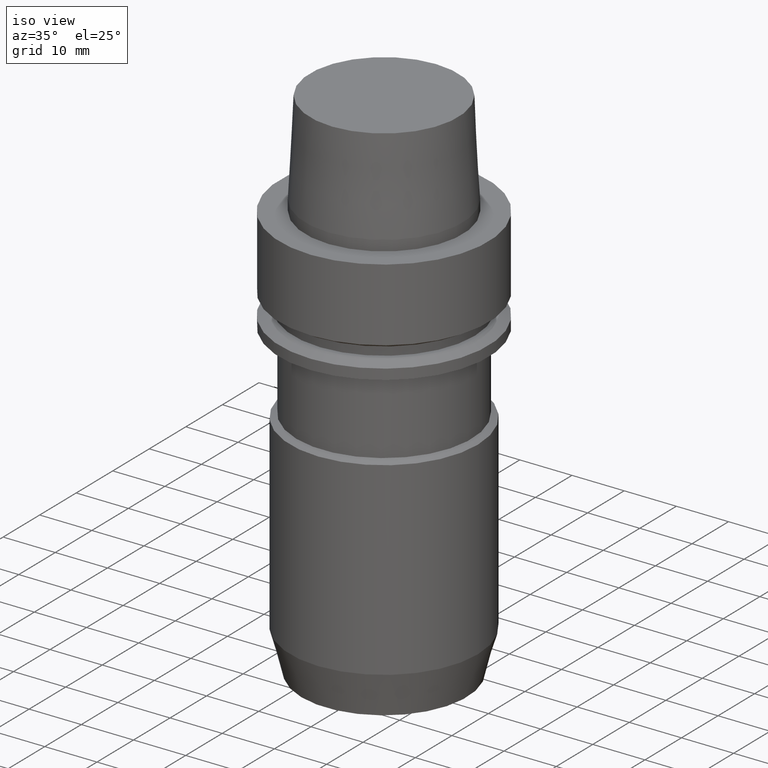
[diagram: clean part render]
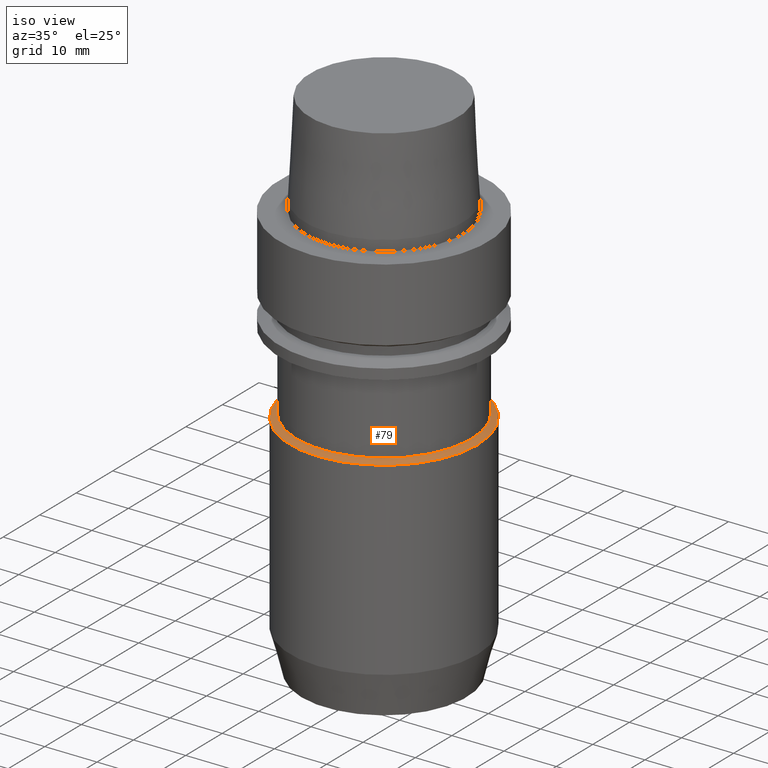
[diagram: same view with one face highlighted and labeled with its STEP entity id]
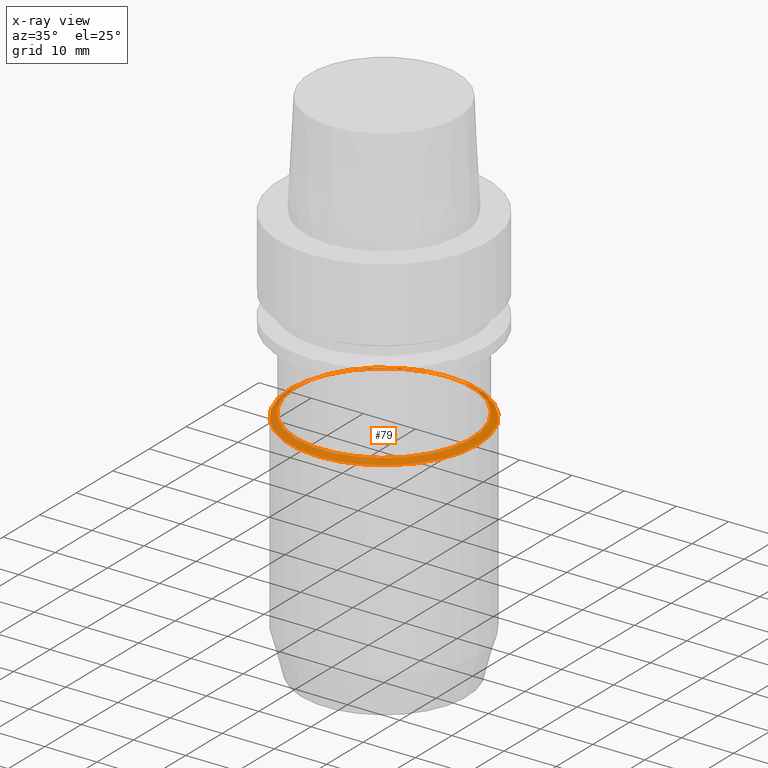
[diagram: x-ray of the same camera — body ghosted, the highlighted face saturated]
A machine part, iso view. The second image highlights one B-rep face of the part: STEP entity #79.
The next image is the same camera in x-ray: the body ghosted, the highlighted face saturated — about 7% of this face is hidden behind the body in this view.
In plain terms, the highlighted conical surface has half-angle 60 deg.
Its self-contained STEP definition (entity closure, byte-faithful):
#79=ADVANCED_FACE('',(#104,#105),#106,.T.);
#104=FACE_BOUND('',#153,.T.);
#105=FACE_BOUND('',#154,.T.);
#106=CONICAL_SURFACE('',#155,17.4,1.04719754854336);
#153=EDGE_LOOP('',(#210));
#154=EDGE_LOOP('',(#211));
#155=AXIS2_PLACEMENT_3D('',#212,#213,#214);
#210=ORIENTED_EDGE('',*,*,#279,.F.);
#211=ORIENTED_EDGE('',*,*,#278,.T.);
#212=CARTESIAN_POINT('',(2.16434340357934E-015,4.32868680715867E-015,-35.3464101663636));
#213=DIRECTION('',(6.12323399573677E-017,1.22464679914735E-016,-1.0));
#214=DIRECTION('',(-1.23259516440783E-032,1.0,1.22464679914735E-016));
#278=EDGE_CURVE('',#298,#298,#299,.T.);
#279=EDGE_CURVE('',#300,#300,#301,.T.);
#298=VERTEX_POINT('',#330);
#299=CIRCLE('',#331,18.0);
#300=VERTEX_POINT('',#332);
#301=CIRCLE('',#333,16.8);
#330=CARTESIAN_POINT('',(2.1855549084838E-015,18.0,-35.69282033));
#331=AXIS2_PLACEMENT_3D('',#366,#367,#368);
#332=CARTESIAN_POINT('',(2.14313189867487E-015,16.8,-35.0000000027273));
#333=AXIS2_PLACEMENT_3D('',#369,#370,#371);
#366=CARTESIAN_POINT('',(2.1855549084838E-015,4.37110981696761E-015,-35.69282033));
#367=DIRECTION('',(-6.12323399573677E-017,-1.22464679914735E-016,1.0));
#368=DIRECTION('',(-1.23259516440783E-032,1.0,1.22464679914735E-016));
#369=CARTESIAN_POINT('',(2.14313189867487E-015,4.28626379734973E-015,-35.0000000027273));
#370=DIRECTION('',(-6.12323399573677E-017,-1.22464679914735E-016,1.0));
#371=DIRECTION('',(-1.23259516440783E-032,1.0,1.22464679914735E-016));